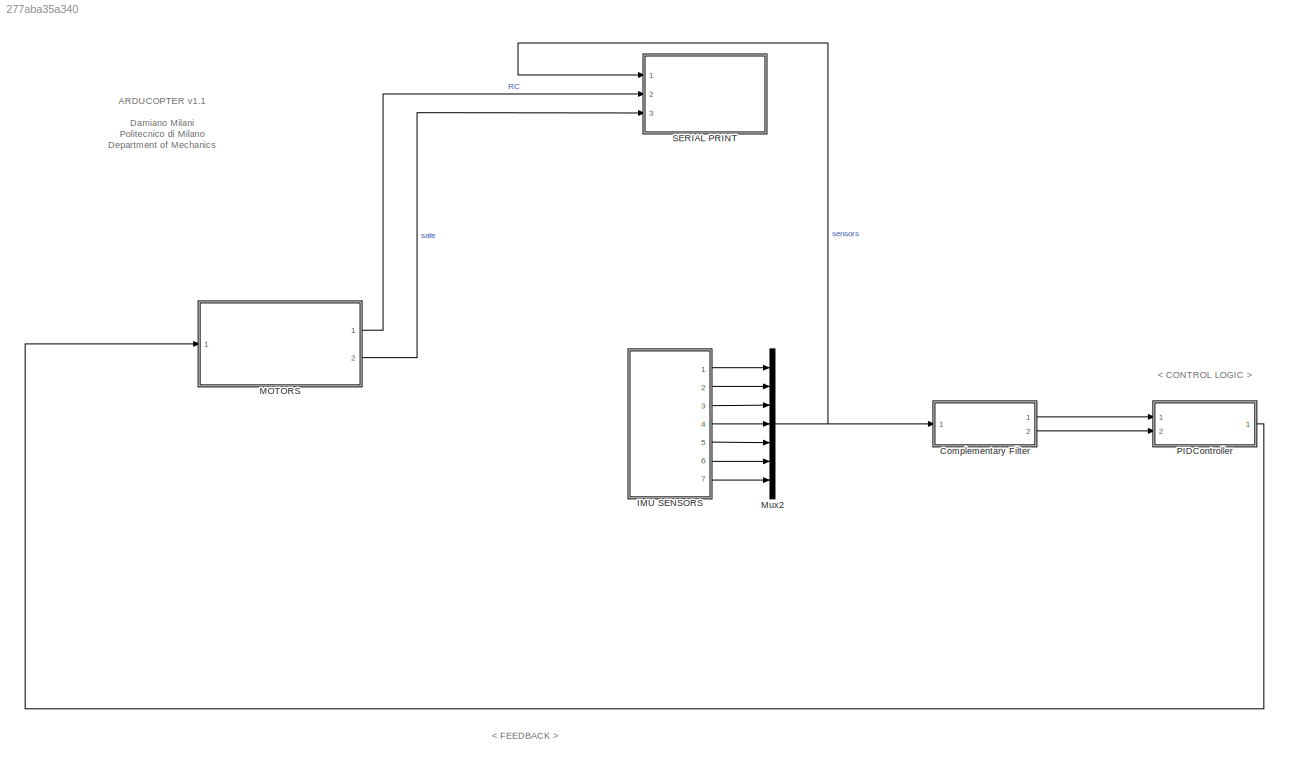
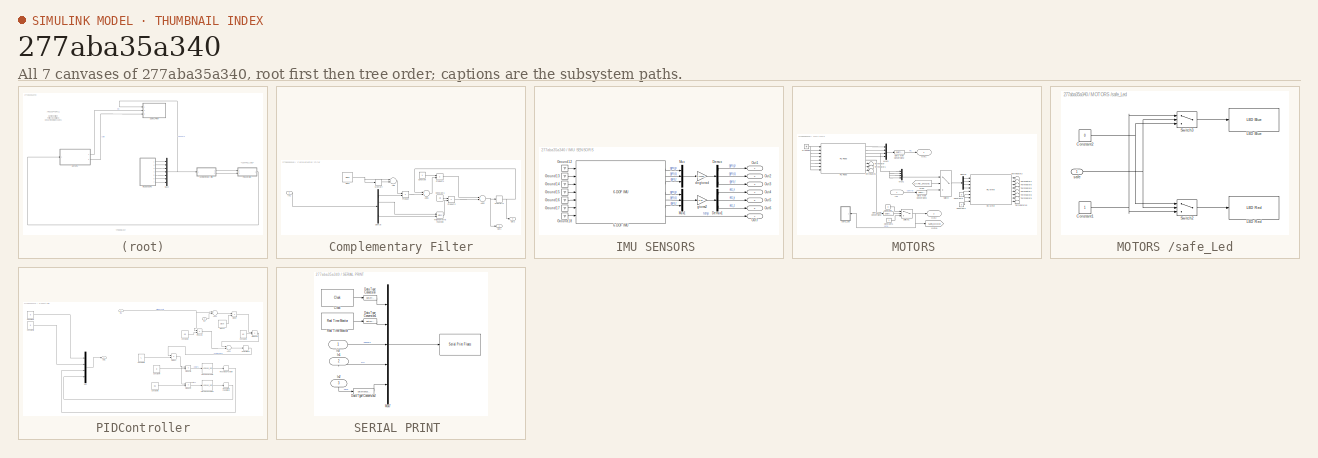
[diagram: thumbnail index - all 7 canvases of the model, root first then tree order]
MODEL slx_277aba35a340
KIND model
BLOCK [SubSystem] Complementary Filter
  Ports = [1, 2]
  RequestExecContextInheritance = off
BLOCK [Sum] Complementary Filter/Add
  InputSameDT = off
  Inputs = +-
  OutDataTypeStr = Inherit: Inherit via internal rule
  Ports = [2, 1]
  SaturateOnIntegerOverflow = off
BLOCK [Sum] Complementary Filter/Add1
  InputSameDT = off
  OutDataTypeStr = Inherit: Inherit via internal rule
  Ports = [2, 1]
  SaturateOnIntegerOverflow = off
BLOCK [Sum] Complementary Filter/Add2
  InputSameDT = off
  OutDataTypeStr = Inherit: Inherit via internal rule
  Ports = [2, 1]
  SaturateOnIntegerOverflow = off
BLOCK [Clock] Complementary Filter/Clock
BLOCK [Constant] Complementary Filter/Constant
  Value = a
BLOCK [Constant] Complementary Filter/Constant1
  Value = 1-a
BLOCK [Demux] Complementary Filter/Demux
  DisplayOption = bar
  Outputs = 7
  Ports = [1, 7]
BLOCK [Inport] Complementary Filter/In1
  IconDisplay = Port number
BLOCK [Memory] Complementary Filter/Memory
  InheritSampleTime = on
BLOCK [Memory] Complementary Filter/Memory1
  InheritSampleTime = on
BLOCK [Outport] Complementary Filter/Out1
  IconDisplay = Port number
BLOCK [Outport] Complementary Filter/Out2
  IconDisplay = Port number
  Port = 2
BLOCK [Product] Complementary Filter/Product
  InputSameDT = off
  OutDataTypeStr = Inherit: Inherit via internal rule
  Ports = [2, 1]
  RndMeth = Floor
  SaturateOnIntegerOverflow = off
BLOCK [Product] Complementary Filter/Product1
  InputSameDT = off
  OutDataTypeStr = Inherit: Inherit via internal rule
  Ports = [2, 1]
  RndMeth = Floor
  SaturateOnIntegerOverflow = off
BLOCK [Product] Complementary Filter/Product2
  InputSameDT = off
  OutDataTypeStr = Inherit: Inherit via internal rule
  Ports = [2, 1]
  RndMeth = Floor
  SaturateOnIntegerOverflow = off
BLOCK [Trigonometry] Complementary Filter/Trigonometric Function
  Operator = atan2
  Ports = [2, 1]
BLOCK [SubSystem] IMU SENSORS 
  AttributesFormatString = 6 DOF IMU\nSensors measurements from ArduCopter IMU:\n- 3-axial gyro\n- 3-axial accelerometer\n- temp sensor
  Ports = [0, 7]
  RequestExecContextInheritance = off
BLOCK [Reference] IMU SENSORS / 6-DOF IMU   REF=IMU_Library/6-DOF IMU
  Ports = [7, 7]
  SampleTime = 0.02
  SourceBlock = IMU_Library/6-DOF IMU
  SourceType = ArduPilot Mega 2.0 IMU
  accel_scale = +/- 2g
  accel_scale_ix = +/- 8g
  gyro_scale = +/- 250 deg/sec
  gyro_scale_ix = +/- 500 deg/sec
  lpf_filt_freq_hz = 5 Hz
  lpf_filt_freq_hz_ix = 20 Hz
BLOCK [Demux] IMU SENSORS /Demux
  DisplayOption = bar
  Outputs = 3
  Ports = [1, 3]
BLOCK [Demux] IMU SENSORS /Demux1
  DisplayOption = bar
  Outputs = 3
  Ports = [1, 3]
BLOCK [Ground] IMU SENSORS /Ground12
BLOCK [Ground] IMU SENSORS /Ground13
BLOCK [Ground] IMU SENSORS /Ground14
BLOCK [Ground] IMU SENSORS /Ground15
BLOCK [Ground] IMU SENSORS /Ground16
BLOCK [Ground] IMU SENSORS /Ground17
BLOCK [Ground] IMU SENSORS /Ground18
BLOCK [Mux] IMU SENSORS /Mux
  DisplayOption = bar
  Inputs = 3
  Ports = [3, 1]
BLOCK [Mux] IMU SENSORS /Mux1
  DisplayOption = bar
  Inputs = 3
  Ports = [3, 1]
BLOCK [Outport] IMU SENSORS /Out1
  IconDisplay = Signal name
BLOCK [Outport] IMU SENSORS /Out2
  IconDisplay = Signal name
  Port = 2
BLOCK [Outport] IMU SENSORS /Out3
  IconDisplay = Signal name
  Port = 3
BLOCK [Outport] IMU SENSORS /Out4
  IconDisplay = Signal name
  Port = 4
BLOCK [Outport] IMU SENSORS /Out5
  IconDisplay = Signal name
  Port = 5
BLOCK [Outport] IMU SENSORS /Out6
  IconDisplay = Signal name
  Port = 6
BLOCK [Outport] IMU SENSORS /Out7
  IconDisplay = Signal name
  Port = 7
BLOCK [Gain] IMU SENSORS /degtorad
  Gain = 3.141592/180
  OutDataTypeStr = Inherit: Inherit via internal rule
  ParamDataTypeStr = Inherit: Inherit via internal rule
  SaturateOnIntegerOverflow = off
BLOCK [Gain] IMU SENSORS /gtoms2
  Gain = 9.81
  OutDataTypeStr = Inherit: Inherit via internal rule
  ParamDataTypeStr = Inherit: Inherit via internal rule
  SaturateOnIntegerOverflow = off
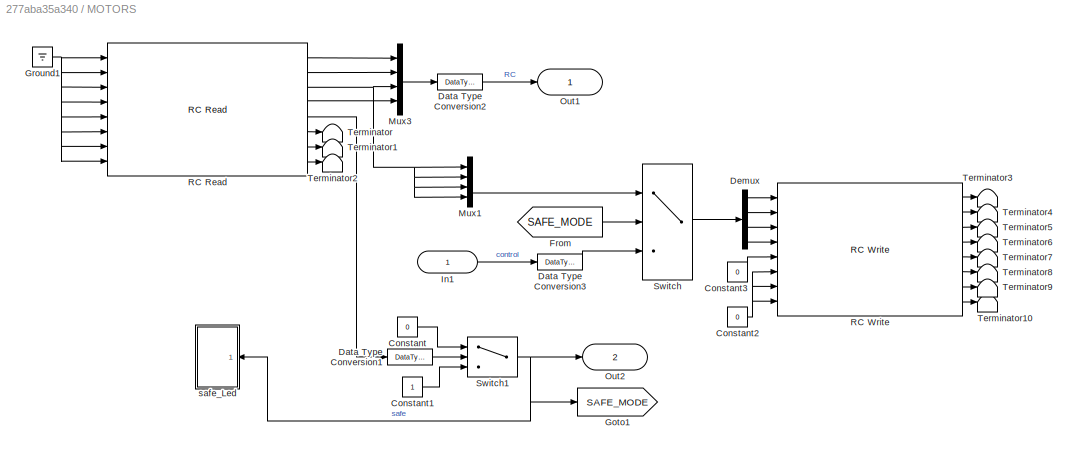
BLOCK [SubSystem] MOTORS 
  AttributesFormatString = MOTORS ACTUATION WITH SAFE MODE\nIf the safe switch on the RC is armed, it passes the input signal to the 4 motors (red LED).\nIf the safety mode is enabled, the motors are controlled by the RC (blue LED).\nIf an overrun occurs yellow LED is on.\nINPUT: actuation signals [4] from control logic\nOUTPUT: command signals [4] from RC and safe flag [1]
  Ports = [1, 2]
  RequestExecContextInheritance = off
BLOCK [Constant] MOTORS /Constant
  OutDataTypeStr = int8
  Value = 0
BLOCK [Constant] MOTORS /Constant1
  OutDataTypeStr = int8
BLOCK [Constant] MOTORS /Constant2
  OutDataTypeStr = uint16
  Value = 0
BLOCK [Constant] MOTORS /Constant3
  OutDataTypeStr = int16
  Value = 0
BLOCK [DataTypeConversion] MOTORS /Data Type Conversion1
  RndMeth = Floor
  SaturateOnIntegerOverflow = off
BLOCK [DataTypeConversion] MOTORS /Data Type Conversion2
  RndMeth = Floor
  SaturateOnIntegerOverflow = off
BLOCK [DataTypeConversion] MOTORS /Data Type Conversion3
  RndMeth = Floor
  SaturateOnIntegerOverflow = off
BLOCK [Demux] MOTORS /Demux
  DisplayOption = bar
  Ports = [1, 4]
BLOCK [From] MOTORS /From
  GotoTag = SAFE_MODE
BLOCK [Goto] MOTORS /Goto1
  GotoTag = SAFE_MODE
  IconDisplay = Signal name
BLOCK [Ground] MOTORS /Ground1
BLOCK [Inport] MOTORS /In1
  Description = 4 signals for the motors FROM CONTROL
  IconDisplay = Signal name
BLOCK [Mux] MOTORS /Mux1
  DisplayOption = bar
  Ports = [4, 1]
BLOCK [Mux] MOTORS /Mux3
  DisplayOption = bar
  Ports = [4, 1]
BLOCK [Outport] MOTORS /Out1
  IconDisplay = Port number and signal name
BLOCK [Outport] MOTORS /Out2
  IconDisplay = Signal name
  Port = 2
BLOCK [Reference] MOTORS /RC Read  REF=RC_Library/RC Read
  Ports = [8, 8]
  SourceBlock = RC_Library/RC Read
  SourceType = ArduPilot Mega 2.0 RC Read
BLOCK [Reference] MOTORS /RC Write  REF=RC_Library/RC Write
  Ports = [8, 8]
  SourceBlock = RC_Library/RC Write
  SourceType = RCWrite
BLOCK [Switch] MOTORS /Switch
  Criteria = u2 > Threshold
  InputSameDT = off
  SaturateOnIntegerOverflow = off
BLOCK [Switch] MOTORS /Switch1
  InputSameDT = off
  SaturateOnIntegerOverflow = off
  Threshold = 1800
BLOCK [Terminator] MOTORS /Terminator
BLOCK [Terminator] MOTORS /Terminator1
BLOCK [Terminator] MOTORS /Terminator10
BLOCK [Terminator] MOTORS /Terminator2
BLOCK [Terminator] MOTORS /Terminator3
BLOCK [Terminator] MOTORS /Terminator4
BLOCK [Terminator] MOTORS /Terminator5
BLOCK [Terminator] MOTORS /Terminator6
BLOCK [Terminator] MOTORS /Terminator7
BLOCK [Terminator] MOTORS /Terminator8
BLOCK [Terminator] MOTORS /Terminator9
BLOCK [SubSystem] MOTORS /safe_Led
  Ports = [1]
  RequestExecContextInheritance = off
BLOCK [Constant] MOTORS /safe_Led/Constant1
BLOCK [Constant] MOTORS /safe_Led/Constant2
  Value = 0
BLOCK [Reference] MOTORS /safe_Led/LED Blue  REF=Discrete_IO_Library/LED Blue
  Ports = [1]
  SourceBlock = Discrete_IO_Library/LED Blue
  SourceType = ArduPilot Mega 2.0 Blue LED
BLOCK [Reference] MOTORS /safe_Led/LED Red  REF=Discrete_IO_Library/LED Red
  Ports = [1]
  SourceBlock = Discrete_IO_Library/LED Red
  SourceType = ArduPilot Mega 2.0 Red LED
BLOCK [Switch] MOTORS /safe_Led/Switch2
  Criteria = u2 > Threshold
  InputSameDT = off
  SaturateOnIntegerOverflow = off
BLOCK [Switch] MOTORS /safe_Led/Switch3
  Criteria = u2 > Threshold
  InputSameDT = off
  SaturateOnIntegerOverflow = off
BLOCK [Inport] MOTORS /safe_Led/safe
  IconDisplay = Port number
BLOCK [Mux] Mux2
  DisplayOption = bar
  Inputs = 7
  Ports = [7, 1]
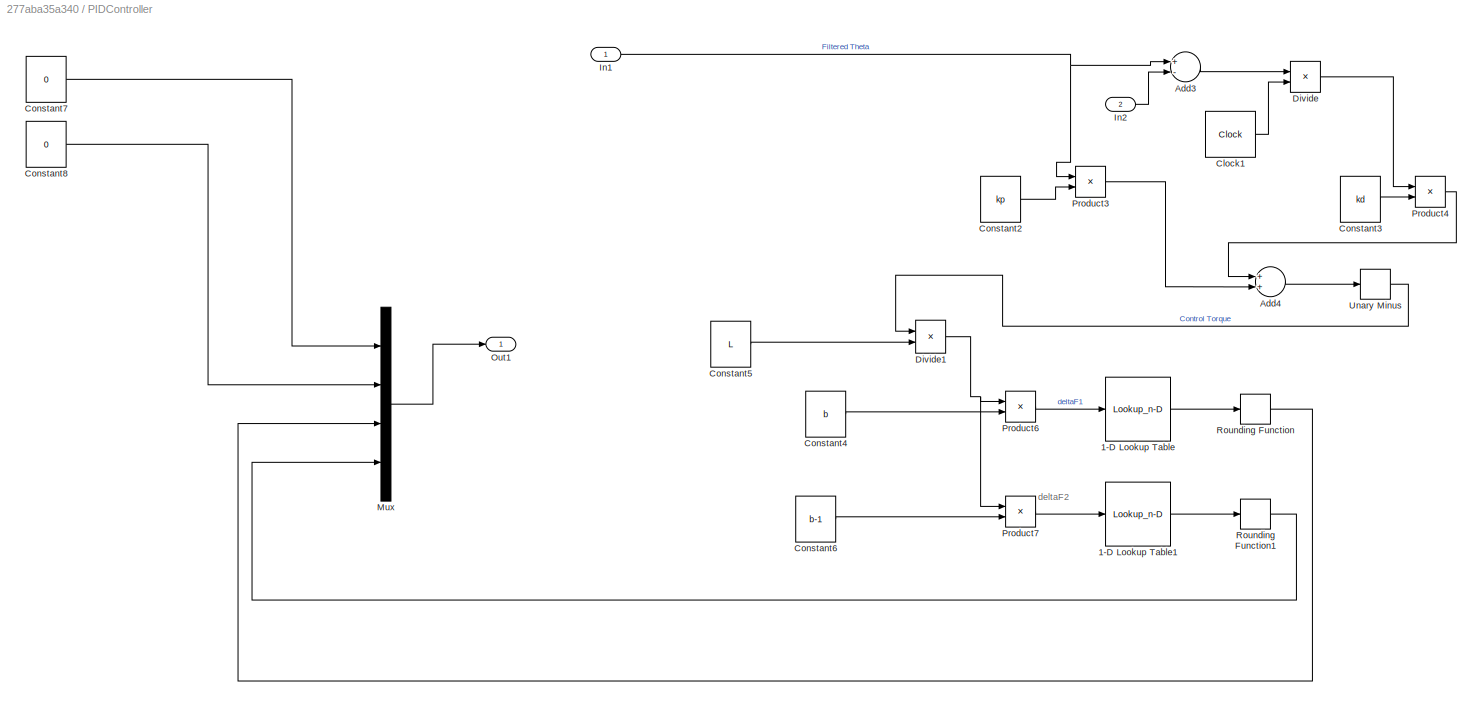
BLOCK [SubSystem] PIDController
  Ports = [2, 1]
  RequestExecContextInheritance = off
BLOCK [Lookup_n-D] PIDController/1-D Lookup Table
  BreakpointsForDimension1 = [-2,2]
  InternalRulePriority = Speed
  NumberOfTableDimensions = 1
  Ports = [1, 1]
  RndMeth = Simplest
  Table = [1447,1792]
BLOCK [Lookup_n-D] PIDController/1-D Lookup Table1
  BreakpointsForDimension1 = [-2,2]
  InternalRulePriority = Speed
  NumberOfTableDimensions = 1
  Ports = [1, 1]
  RndMeth = Simplest
  Table = [1455,1832]
BLOCK [Sum] PIDController/Add3
  InputSameDT = off
  Inputs = +-
  OutDataTypeStr = Inherit: Inherit via internal rule
  Ports = [2, 1]
  SaturateOnIntegerOverflow = off
BLOCK [Sum] PIDController/Add4
  InputSameDT = off
  OutDataTypeStr = Inherit: Inherit via internal rule
  Ports = [2, 1]
  SaturateOnIntegerOverflow = off
BLOCK [Clock] PIDController/Clock1
BLOCK [Constant] PIDController/Constant2
  Value = kp
BLOCK [Constant] PIDController/Constant3
  Value = kd
BLOCK [Constant] PIDController/Constant4
  Value = b
BLOCK [Constant] PIDController/Constant5
  Value = L
BLOCK [Constant] PIDController/Constant6
  Value = b-1
BLOCK [Constant] PIDController/Constant7
  Value = 0
BLOCK [Constant] PIDController/Constant8
  Value = 0
BLOCK [Product] PIDController/Divide
  InputSameDT = off
  Inputs = */
  OutDataTypeStr = Inherit: Inherit via internal rule
  Ports = [2, 1]
  RndMeth = Floor
  SaturateOnIntegerOverflow = off
BLOCK [Product] PIDController/Divide1
  InputSameDT = off
  Inputs = */
  OutDataTypeStr = Inherit: Inherit via internal rule
  Ports = [2, 1]
  RndMeth = Floor
  SaturateOnIntegerOverflow = off
BLOCK [Inport] PIDController/In1
  IconDisplay = Port number
BLOCK [Inport] PIDController/In2
  IconDisplay = Port number
  Port = 2
BLOCK [Mux] PIDController/Mux
  DisplayOption = bar
  Ports = [4, 1]
BLOCK [Outport] PIDController/Out1
  IconDisplay = Port number
BLOCK [Product] PIDController/Product3
  InputSameDT = off
  OutDataTypeStr = Inherit: Inherit via internal rule
  Ports = [2, 1]
  RndMeth = Floor
  SaturateOnIntegerOverflow = off
BLOCK [Product] PIDController/Product4
  InputSameDT = off
  OutDataTypeStr = Inherit: Inherit via internal rule
  Ports = [2, 1]
  RndMeth = Floor
  SaturateOnIntegerOverflow = off
BLOCK [Product] PIDController/Product6
  InputSameDT = off
  OutDataTypeStr = Inherit: Inherit via internal rule
  Ports = [2, 1]
  RndMeth = Floor
  SaturateOnIntegerOverflow = off
BLOCK [Product] PIDController/Product7
  InputSameDT = off
  OutDataTypeStr = Inherit: Inherit via internal rule
  Ports = [2, 1]
  RndMeth = Floor
  SaturateOnIntegerOverflow = off
BLOCK [Rounding] PIDController/Rounding Function
  Operator = round
BLOCK [Rounding] PIDController/Rounding Function1
  Operator = round
BLOCK [UnaryMinus] PIDController/Unary Minus
BLOCK [SubSystem] SERIAL PRINT 
  AttributesFormatString = DATA TRANSMISSION\nData transmission to serial port:\n(deactivate if overrun occurs)\n- elapsed time [1]\n- real time [1]\n- IMU sensors [7]\n- RC signals [4]\n- safe mode [1]
  Ports = [3]
  RequestExecContextInheritance = off
BLOCK [Reference] SERIAL PRINT /   REF=Serial_Library/Serial Print Floats
  Ports = [1]
  SampleTime = -1
  SourceBlock = Serial_Library/Serial Print Floats
  SourceType = ArduPilot Mega 2.0 Serial Print Floats
  baud = 57600
  uart = UART0
BLOCK [Reference] SERIAL PRINT /Clock  REF=Timing_Library/Clock
  Ports = [0, 1]
  SampleTime = .02
  SourceBlock = Timing_Library/Clock
  SourceType = ArduPilot Mega 2.0 Clock
BLOCK [DataTypeConversion] SERIAL PRINT /Data Type Conversion
  RndMeth = Floor
  SaturateOnIntegerOverflow = off
BLOCK [DataTypeConversion] SERIAL PRINT /Data Type Conversion1
  RndMeth = Floor
  SaturateOnIntegerOverflow = off
BLOCK [DataTypeConversion] SERIAL PRINT /Data Type Conversion2
  RndMeth = Floor
  SaturateOnIntegerOverflow = off
BLOCK [Inport] SERIAL PRINT /In1
  IconDisplay = Signal name
  Port = 2
BLOCK [Inport] SERIAL PRINT /In2
  IconDisplay = Signal name
  Port = 3
BLOCK [Inport] SERIAL PRINT /In3
  IconDisplay = Signal name
BLOCK [Mux] SERIAL PRINT /Mux7
  DisplayOption = bar
  Inputs = 5
  Ports = [5, 1]
BLOCK [Reference] SERIAL PRINT /Real Time Monitor  REF=Timing_Library/Real Time Monitor
  Ports = [0, 1]
  SampleTime = 0.02
  SourceBlock = Timing_Library/Real Time Monitor
  SourceType = ArduPilot Mega 2.0 Real Time Monitor
ANNOTATION (root): ARDUCOPTER v1.1 Damiano Milani Politecnico di Milano Department of Mechanics
ANNOTATION PIDController: deltaF2
LINE Complementary Filter/Add1:1 -> Complementary Filter/Product1:2
NET Complementary Filter/Add2:1 -> Complementary Filter/Memory1:1, Complementary Filter/Out1:1
LINE Complementary Filter/Add:1 -> Complementary Filter/Product:1
NET Complementary Filter/Clock:1 -> Complementary Filter/Add:1, Complementary Filter/Memory:1
LINE Complementary Filter/Constant1:1 -> Complementary Filter/Product2:1
LINE Complementary Filter/Constant:1 -> Complementary Filter/Product1:1
LINE Complementary Filter/Demux:2 -> Complementary Filter/Product:2
LINE Complementary Filter/Demux:3 -> Complementary Filter/Trigonometric Function:1
LINE Complementary Filter/Demux:6 -> Complementary Filter/Trigonometric Function:2
LINE Complementary Filter/In1:1 -> Complementary Filter/Demux:1
NET Complementary Filter/Memory1:1 -> Complementary Filter/Add1:1, Complementary Filter/Out2:1
LINE Complementary Filter/Memory:1 -> Complementary Filter/Add:2
LINE Complementary Filter/Product1:1 -> Complementary Filter/Add2:1
LINE Complementary Filter/Product2:1 -> Complementary Filter/Add2:2
LINE Complementary Filter/Product:1 -> Complementary Filter/Add1:2
LINE Complementary Filter/Trigonometric Function:1 -> Complementary Filter/Product2:2
LINE Complementary Filter:1 -> PIDController:1
LINE Complementary Filter:2 -> PIDController:2
LINE IMU SENSORS / 6-DOF IMU :1 -> IMU SENSORS /Mux:1
LINE IMU SENSORS / 6-DOF IMU :2 -> IMU SENSORS /Mux:2
LINE IMU SENSORS / 6-DOF IMU :3 -> IMU SENSORS /Mux:3
LINE IMU SENSORS / 6-DOF IMU :4 -> IMU SENSORS /Mux1:1
LINE IMU SENSORS / 6-DOF IMU :5 -> IMU SENSORS /Mux1:2
LINE IMU SENSORS / 6-DOF IMU :6 -> IMU SENSORS /Mux1:3
LINE IMU SENSORS / 6-DOF IMU :7 -> IMU SENSORS /Out7:1
LINE IMU SENSORS /Demux1:1 -> IMU SENSORS /Out4:1
LINE IMU SENSORS /Demux1:2 -> IMU SENSORS /Out5:1
LINE IMU SENSORS /Demux1:3 -> IMU SENSORS /Out6:1
LINE IMU SENSORS /Demux:1 -> IMU SENSORS /Out1:1
LINE IMU SENSORS /Demux:2 -> IMU SENSORS /Out2:1
LINE IMU SENSORS /Demux:3 -> IMU SENSORS /Out3:1
LINE IMU SENSORS /Ground12:1 -> IMU SENSORS / 6-DOF IMU :1
LINE IMU SENSORS /Ground13:1 -> IMU SENSORS / 6-DOF IMU :2
LINE IMU SENSORS /Ground14:1 -> IMU SENSORS / 6-DOF IMU :3
LINE IMU SENSORS /Ground15:1 -> IMU SENSORS / 6-DOF IMU :4
LINE IMU SENSORS /Ground16:1 -> IMU SENSORS / 6-DOF IMU :5
LINE IMU SENSORS /Ground17:1 -> IMU SENSORS / 6-DOF IMU :6
LINE IMU SENSORS /Ground18:1 -> IMU SENSORS / 6-DOF IMU :7
LINE IMU SENSORS /Mux1:1 -> IMU SENSORS /gtoms2:1
LINE IMU SENSORS /Mux:1 -> IMU SENSORS /degtorad:1
LINE IMU SENSORS /degtorad:1 -> IMU SENSORS /Demux:1
LINE IMU SENSORS /gtoms2:1 -> IMU SENSORS /Demux1:1
LINE IMU SENSORS :1 -> Mux2:1
LINE IMU SENSORS :2 -> Mux2:2
LINE IMU SENSORS :3 -> Mux2:3
LINE IMU SENSORS :4 -> Mux2:4
LINE IMU SENSORS :5 -> Mux2:5
LINE IMU SENSORS :6 -> Mux2:6
LINE IMU SENSORS :7 -> Mux2:7
LINE MOTORS /Constant1:1 -> MOTORS /Switch1:3
NET MOTORS /Constant2:1 -> MOTORS /RC Write:6, MOTORS /RC Write:7, MOTORS /RC Write:8
LINE MOTORS /Constant3:1 -> MOTORS /RC Write:5
LINE MOTORS /Constant:1 -> MOTORS /Switch1:1
LINE MOTORS /Data Type Conversion1:1 -> MOTORS /Switch1:2
LINE MOTORS /Data Type Conversion2:1 -> MOTORS /Out1:1
LINE MOTORS /Data Type Conversion3:1 -> MOTORS /Switch:3
LINE MOTORS /Demux:1 -> MOTORS /RC Write:1
LINE MOTORS /Demux:2 -> MOTORS /RC Write:2
LINE MOTORS /Demux:3 -> MOTORS /RC Write:3
LINE MOTORS /Demux:4 -> MOTORS /RC Write:4
LINE MOTORS /From:1 -> MOTORS /Switch:2
NET MOTORS /Ground1:1 -> MOTORS /RC Read:1, MOTORS /RC Read:2, MOTORS /RC Read:3, MOTORS /RC Read:4, MOTORS /RC Read:5, MOTORS /RC Read:6, MOTORS /RC Read:7, MOTORS /RC Read:8
LINE MOTORS /In1:1 -> MOTORS /Data Type Conversion3:1
LINE MOTORS /Mux1:1 -> MOTORS /Switch:1
LINE MOTORS /Mux3:1 -> MOTORS /Data Type Conversion2:1
LINE MOTORS /RC Read:1 -> MOTORS /Mux3:1
LINE MOTORS /RC Read:2 -> MOTORS /Mux3:2
NET MOTORS /RC Read:3 -> MOTORS /Mux1:1, MOTORS /Mux1:2, MOTORS /Mux1:3, MOTORS /Mux1:4, MOTORS /Mux3:3
LINE MOTORS /RC Read:4 -> MOTORS /Mux3:4
LINE MOTORS /RC Read:5 -> MOTORS /Data Type Conversion1:1
LINE MOTORS /RC Read:6 -> MOTORS /Terminator:1
LINE MOTORS /RC Read:7 -> MOTORS /Terminator1:1
LINE MOTORS /RC Read:8 -> MOTORS /Terminator2:1
LINE MOTORS /RC Write:1 -> MOTORS /Terminator3:1
LINE MOTORS /RC Write:2 -> MOTORS /Terminator4:1
LINE MOTORS /RC Write:3 -> MOTORS /Terminator5:1
LINE MOTORS /RC Write:4 -> MOTORS /Terminator6:1
LINE MOTORS /RC Write:5 -> MOTORS /Terminator7:1
LINE MOTORS /RC Write:6 -> MOTORS /Terminator8:1
LINE MOTORS /RC Write:7 -> MOTORS /Terminator9:1
LINE MOTORS /RC Write:8 -> MOTORS /Terminator10:1
NET MOTORS /Switch1:1 -> MOTORS /Goto1:1, MOTORS /Out2:1, MOTORS /safe_Led:1
LINE MOTORS /Switch:1 -> MOTORS /Demux:1
NET MOTORS /safe_Led/Constant1:1 -> MOTORS /safe_Led/Switch2:3, MOTORS /safe_Led/Switch3:1
NET MOTORS /safe_Led/Constant2:1 -> MOTORS /safe_Led/Switch2:1, MOTORS /safe_Led/Switch3:3
LINE MOTORS /safe_Led/Switch2:1 -> MOTORS /safe_Led/LED Red:1
LINE MOTORS /safe_Led/Switch3:1 -> MOTORS /safe_Led/LED Blue:1
NET MOTORS /safe_Led/safe:1 -> MOTORS /safe_Led/Switch2:2, MOTORS /safe_Led/Switch3:2
LINE MOTORS :1 -> SERIAL PRINT :2
LINE MOTORS :2 -> SERIAL PRINT :3
NET Mux2:1 -> Complementary Filter:1, SERIAL PRINT :1
LINE PIDController/1-D Lookup Table1:1 -> PIDController/Rounding Function1:1
LINE PIDController/1-D Lookup Table:1 -> PIDController/Rounding Function:1
LINE PIDController/Add3:1 -> PIDController/Divide:1
LINE PIDController/Add4:1 -> PIDController/Unary Minus:1
LINE PIDController/Clock1:1 -> PIDController/Divide:2
LINE PIDController/Constant2:1 -> PIDController/Product3:2
LINE PIDController/Constant3:1 -> PIDController/Product4:2
LINE PIDController/Constant4:1 -> PIDController/Product6:2
LINE PIDController/Constant5:1 -> PIDController/Divide1:2
LINE PIDController/Constant6:1 -> PIDController/Product7:2
LINE PIDController/Constant7:1 -> PIDController/Mux:1
LINE PIDController/Constant8:1 -> PIDController/Mux:2
NET PIDController/Divide1:1 -> PIDController/Product6:1, PIDController/Product7:1
LINE PIDController/Divide:1 -> PIDController/Product4:1
NET PIDController/In1:1 -> PIDController/Add3:1, PIDController/Product3:1
LINE PIDController/In2:1 -> PIDController/Add3:2
LINE PIDController/Mux:1 -> PIDController/Out1:1
LINE PIDController/Product3:1 -> PIDController/Add4:2
LINE PIDController/Product4:1 -> PIDController/Add4:1
LINE PIDController/Product6:1 -> PIDController/1-D Lookup Table:1
LINE PIDController/Product7:1 -> PIDController/1-D Lookup Table1:1
LINE PIDController/Rounding Function1:1 -> PIDController/Mux:4
LINE PIDController/Rounding Function:1 -> PIDController/Mux:3
LINE PIDController/Unary Minus:1 -> PIDController/Divide1:1
LINE PIDController:1 -> MOTORS :1
LINE SERIAL PRINT /Clock:1 -> SERIAL PRINT /Data Type Conversion:1
LINE SERIAL PRINT /Data Type Conversion1:1 -> SERIAL PRINT /Mux7:2
LINE SERIAL PRINT /Data Type Conversion2:1 -> SERIAL PRINT /Mux7:5
LINE SERIAL PRINT /Data Type Conversion:1 -> SERIAL PRINT /Mux7:1
LINE SERIAL PRINT /In1:1 -> SERIAL PRINT /Mux7:4
LINE SERIAL PRINT /In2:1 -> SERIAL PRINT /Data Type Conversion2:1
LINE SERIAL PRINT /In3:1 -> SERIAL PRINT /Mux7:3
LINE SERIAL PRINT /Mux7:1 -> SERIAL PRINT / :1
LINE SERIAL PRINT /Real Time Monitor:1 -> SERIAL PRINT /Data Type Conversion1:1
note: NET lines group one-source signal fan-out (src -> all destinations, sorted); 1:1 wires keep LINE
